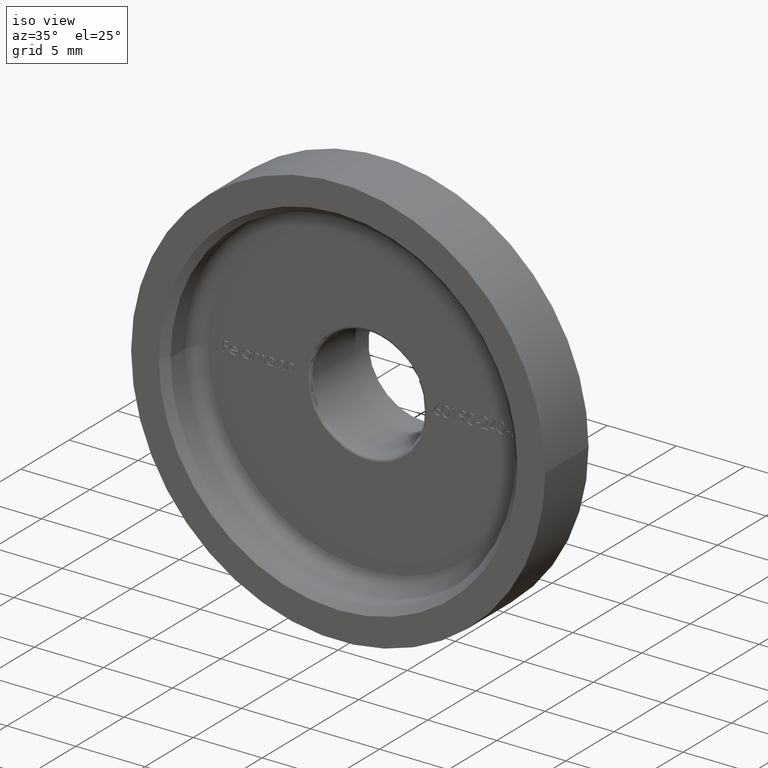
[diagram: clean part render]
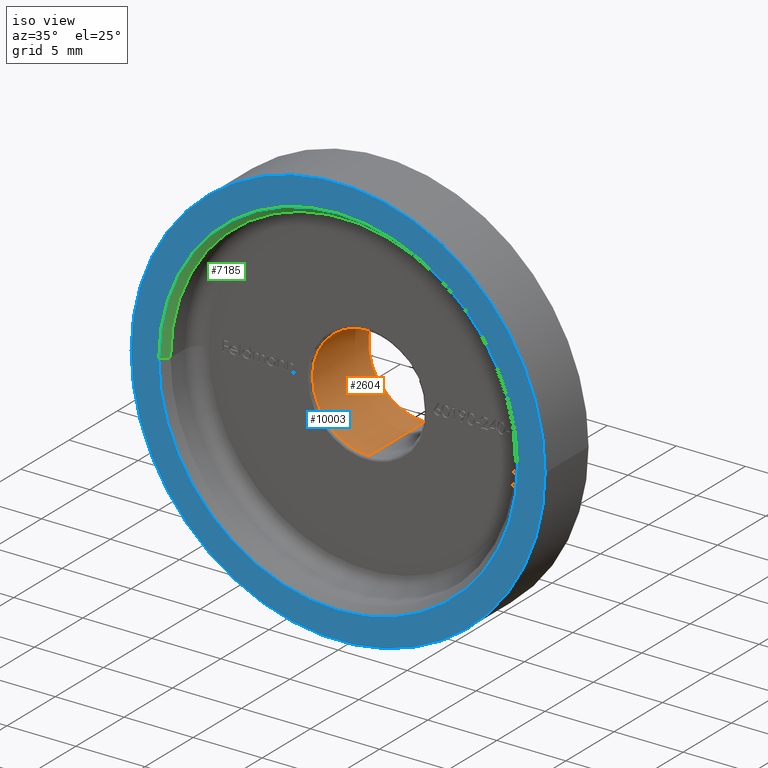
[diagram: same view with three faces highlighted in distinct colors, each labeled with its STEP entity id]
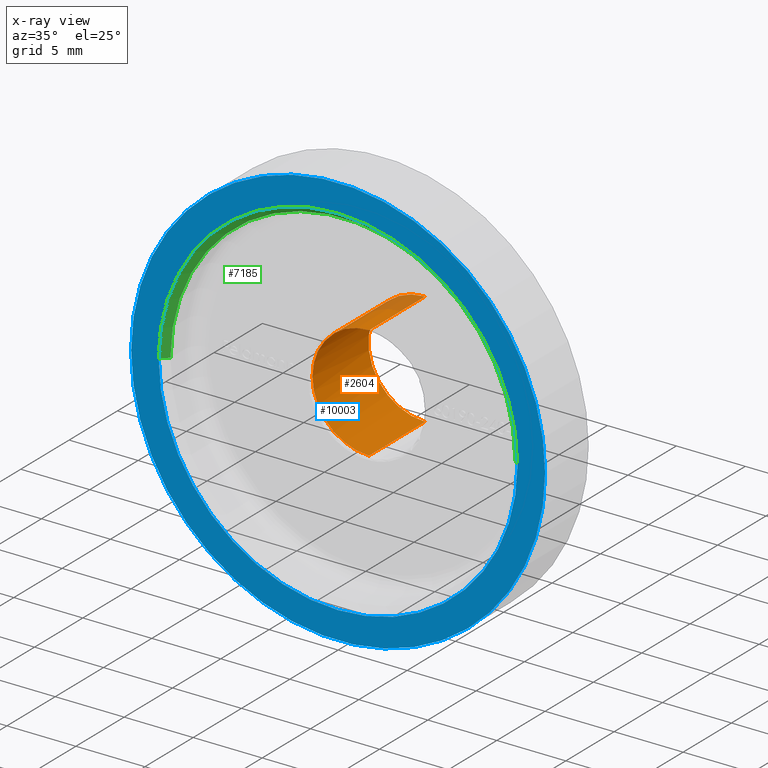
[diagram: x-ray of the same camera — body ghosted, the three highlighted faces saturated]
A machine part, iso view with three faces highlighted in distinct colors.
The next image is the same camera in x-ray (body ghosted, the three faces saturated) — at least one of them is partly hidden behind the body in this view.
Their STEP definitions:

[orange] entity #2604 — the highlighted cylindrical surface (partial cylindrical patch) has radius 4.1 mm, axis along (-0, 1, -0).
#144 = AXIS2_PLACEMENT_3D ( 'NONE', #9505, #13936, #5271 ) ;
#224 = CARTESIAN_POINT ( 'NONE',  ( -1.789868398753823338E-15, 3.199999999999998845, 4.099999999999999645 ) ) ;
#280 = ORIENTED_EDGE ( 'NONE', *, *, #10764, .T. ) ;
#291 = DIRECTION ( 'NONE',  ( 0.000000000000000000, 0.000000000000000000, 1.000000000000000000 ) ) ;
#947 = CARTESIAN_POINT ( 'NONE',  ( -1.287763211103408797E-15, 9.000000000000001776, -4.099999999999999645 ) ) ;
#1347 = DIRECTION ( 'NONE',  ( 0.000000000000000000, 1.000000000000000000, 0.000000000000000000 ) ) ;
#1523 = CYLINDRICAL_SURFACE ( 'NONE', #3236, 4.099999999999999645 ) ;
#1619 = CARTESIAN_POINT ( 'NONE',  ( -1.789868398753823338E-15, 0.000000000000000000, 4.099999999999999645 ) ) ;
#1684 = DIRECTION ( 'NONE',  ( 1.000000000000000000, 2.115516434118057709E-16, 0.000000000000000000 ) ) ;
#2604 = ADVANCED_FACE ( 'NONE', ( #4054 ), #1523, .F. ) ;
#2978 = CARTESIAN_POINT ( 'NONE',  ( -1.287763211103408599E-15, 3.199999999999998845, -4.099999999999999645 ) ) ;
#3164 = DIRECTION ( 'NONE',  ( 0.000000000000000000, 0.000000000000000000, 1.000000000000000000 ) ) ;
#3181 = EDGE_CURVE ( 'NONE', #8200, #13725, #6463, .T. ) ;
#3236 = AXIS2_PLACEMENT_3D ( 'NONE', #7513, #14156, #3164 ) ;
#4054 = FACE_OUTER_BOUND ( 'NONE', #7826, .T. ) ;
#4628 = LINE ( 'NONE', #13463, #7369 ) ;
#4810 = DIRECTION ( 'NONE',  ( 1.884071998688235002E-16, -1.000000000000000000, -0.000000000000000000 ) ) ;
#5214 = VERTEX_POINT ( 'NONE', #2978 ) ;
#5271 = DIRECTION ( 'NONE',  ( 1.000000000000000000, 2.115516434118057709E-16, 0.000000000000000000 ) ) ;
#5680 = CARTESIAN_POINT ( 'NONE',  ( -1.789868398753823338E-15, 9.000000000000001776, 0.000000000000000000 ) ) ;
#6232 = ORIENTED_EDGE ( 'NONE', *, *, #3181, .T. ) ;
#6316 = VERTEX_POINT ( 'NONE', #9429 ) ;
#6463 = CIRCLE ( 'NONE', #8641, 4.099999999999999645 ) ;
#6935 = EDGE_CURVE ( 'NONE', #13478, #6316, #9832, .T. ) ;
#7369 = VECTOR ( 'NONE', #13514, 1000.000000000000000 ) ;
#7513 = CARTESIAN_POINT ( 'NONE',  ( -1.789868398753823338E-15, 0.000000000000000000, 0.000000000000000000 ) ) ;
#7569 = EDGE_CURVE ( 'NONE', #6316, #5214, #9320, .T. ) ;
#7826 = EDGE_LOOP ( 'NONE', ( #10161, #12762, #280, #6232, #9032 ) ) ;
#8066 = CARTESIAN_POINT ( 'NONE',  ( -1.789868398753823338E-15, 3.199999999999998845, 0.000000000000000000 ) ) ;
#8080 = EDGE_CURVE ( 'NONE', #13478, #13725, #12889, .T. ) ;
#8200 = VERTEX_POINT ( 'NONE', #947 ) ;
#8641 = AXIS2_PLACEMENT_3D ( 'NONE', #5680, #1347, #291 ) ;
#8929 = AXIS2_PLACEMENT_3D ( 'NONE', #8066, #4810, #1684 ) ;
#9032 = ORIENTED_EDGE ( 'NONE', *, *, #8080, .F. ) ;
#9320 = CIRCLE ( 'NONE', #8929, 4.099999999999999645 ) ;
#9358 = DIRECTION ( 'NONE',  ( -0.000000000000000000, 1.000000000000000000, -0.000000000000000000 ) ) ;
#9429 = CARTESIAN_POINT ( 'NONE',  ( -4.100000000000001421, 3.199999999999997957, 5.143516556418882928E-16 ) ) ;
#9505 = CARTESIAN_POINT ( 'NONE',  ( -1.789868398753823338E-15, 3.199999999999998845, 0.000000000000000000 ) ) ;
#9832 = CIRCLE ( 'NONE', #144, 4.099999999999999645 ) ;
#10161 = ORIENTED_EDGE ( 'NONE', *, *, #6935, .T. ) ;
#10764 = EDGE_CURVE ( 'NONE', #5214, #8200, #4628, .T. ) ;
#12208 = VECTOR ( 'NONE', #9358, 1000.000000000000000 ) ;
#12632 = CARTESIAN_POINT ( 'NONE',  ( -1.789868398753823338E-15, 9.000000000000001776, 4.099999999999999645 ) ) ;
#12762 = ORIENTED_EDGE ( 'NONE', *, *, #7569, .T. ) ;
#12889 = LINE ( 'NONE', #1619, #12208 ) ;
#13463 = CARTESIAN_POINT ( 'NONE',  ( -1.287763211103408797E-15, 0.000000000000000000, -4.099999999999999645 ) ) ;
#13478 = VERTEX_POINT ( 'NONE', #224 ) ;
#13514 = DIRECTION ( 'NONE',  ( -0.000000000000000000, 1.000000000000000000, -0.000000000000000000 ) ) ;
#13725 = VERTEX_POINT ( 'NONE', #12632 ) ;
#13936 = DIRECTION ( 'NONE',  ( 1.884071998688235002E-16, -1.000000000000000000, -0.000000000000000000 ) ) ;
#14156 = DIRECTION ( 'NONE',  ( -0.000000000000000000, 1.000000000000000000, -0.000000000000000000 ) ) ;

[blue] entity #10003 — the highlighted planar face has unit normal (0, -1, -0).
#138 = CIRCLE ( 'NONE', #14054, 15.00000000000000000 ) ;
#617 = AXIS2_PLACEMENT_3D ( 'NONE', #6286, #14025, #7469 ) ;
#857 = CIRCLE ( 'NONE', #9482, 13.00000000000001243 ) ;
#1127 = VERTEX_POINT ( 'NONE', #7260 ) ;
#1143 = DIRECTION ( 'NONE',  ( -1.884071998688235002E-16, 1.000000000000000000, 0.000000000000000000 ) ) ;
#1420 = EDGE_CURVE ( 'NONE', #10763, #12842, #857, .T. ) ;
#1704 = DIRECTION ( 'NONE',  ( 1.000000000000000000, 1.884071998688235002E-16, 0.000000000000000000 ) ) ;
#2019 = ORIENTED_EDGE ( 'NONE', *, *, #2372, .T. ) ;
#2372 = EDGE_CURVE ( 'NONE', #8104, #1127, #138, .T. ) ;
#2497 = EDGE_CURVE ( 'NONE', #12842, #10763, #12795, .T. ) ;
#2568 = DIRECTION ( 'NONE',  ( 1.884071998688235002E-16, -1.000000000000000000, -0.000000000000000000 ) ) ;
#3272 = FACE_OUTER_BOUND ( 'NONE', #9837, .T. ) ;
#3609 = CARTESIAN_POINT ( 'NONE',  ( -1.695664798819406596E-16, -3.035766082959412415E-15, 0.000000000000000000 ) ) ;
#3689 = EDGE_LOOP ( 'NONE', ( #3719, #7913 ) ) ;
#3719 = ORIENTED_EDGE ( 'NONE', *, *, #1420, .T. ) ;
#3843 = CARTESIAN_POINT ( 'NONE',  ( 15.00000000000000000, -2.096580849270600606E-16, 0.000000000000000000 ) ) ;
#4491 = CIRCLE ( 'NONE', #11219, 15.00000000000000000 ) ;
#5546 = EDGE_CURVE ( 'NONE', #1127, #8104, #4491, .T. ) ;
#6047 = CARTESIAN_POINT ( 'NONE',  ( 15.00000000000000000, 8.242814994261007641E-17, 0.000000000000000000 ) ) ;
#6139 = PLANE ( 'NONE',  #8000 ) ;
#6286 = CARTESIAN_POINT ( 'NONE',  ( -1.695664798819407335E-16, -2.743679848089742229E-15, 0.000000000000000000 ) ) ;
#6614 = CARTESIAN_POINT ( 'NONE',  ( -1.695664798819407335E-16, -2.743679848089742229E-15, 0.000000000000000000 ) ) ;
#7007 = ORIENTED_EDGE ( 'NONE', *, *, #5546, .T. ) ;
#7260 = CARTESIAN_POINT ( 'NONE',  ( -15.00000000000000000, -5.861874080991765386E-15, 1.836970198721029589E-15 ) ) ;
#7469 = DIRECTION ( 'NONE',  ( 1.000000000000000000, 1.884071998688235248E-16, 0.000000000000000000 ) ) ;
#7913 = ORIENTED_EDGE ( 'NONE', *, *, #2497, .T. ) ;
#8000 = AXIS2_PLACEMENT_3D ( 'NONE', #6047, #8235, #1704 ) ;
#8104 = VERTEX_POINT ( 'NONE', #3843 ) ;
#8235 = DIRECTION ( 'NONE',  ( 1.884071998688235002E-16, -1.000000000000000000, -0.000000000000000000 ) ) ;
#8845 = DIRECTION ( 'NONE',  ( 1.000000000000000000, 1.884071998688235248E-16, 0.000000000000000000 ) ) ;
#8999 = DIRECTION ( 'NONE',  ( 1.000000000000000000, 1.884071998688234755E-16, 0.000000000000000000 ) ) ;
#9097 = CARTESIAN_POINT ( 'NONE',  ( -1.695664798819406596E-16, -3.035766082959412415E-15, 0.000000000000000000 ) ) ;
#9452 = FACE_BOUND ( 'NONE', #3689, .T. ) ;
#9482 = AXIS2_PLACEMENT_3D ( 'NONE', #6614, #1143, #8845 ) ;
#9837 = EDGE_LOOP ( 'NONE', ( #2019, #7007 ) ) ;
#10003 = ADVANCED_FACE ( 'NONE', ( #9452, #3272 ), #6139, .T. ) ;
#10763 = VERTEX_POINT ( 'NONE', #12636 ) ;
#11219 = AXIS2_PLACEMENT_3D ( 'NONE', #9097, #12425, #8999 ) ;
#11255 = DIRECTION ( 'NONE',  ( 1.000000000000000000, 1.884071998688234755E-16, 0.000000000000000000 ) ) ;
#12425 = DIRECTION ( 'NONE',  ( 1.884071998688235002E-16, -1.000000000000000000, -0.000000000000000000 ) ) ;
#12500 = CARTESIAN_POINT ( 'NONE',  ( -13.00000000000001243, -5.237344844806402427E-15, 1.592040838891560870E-15 ) ) ;
#12636 = CARTESIAN_POINT ( 'NONE',  ( 13.00000000000001243, -2.500148513730820800E-16, 0.000000000000000000 ) ) ;
#12795 = CIRCLE ( 'NONE', #617, 13.00000000000001243 ) ;
#12842 = VERTEX_POINT ( 'NONE', #12500 ) ;
#14025 = DIRECTION ( 'NONE',  ( -1.884071998688235002E-16, 1.000000000000000000, 0.000000000000000000 ) ) ;
#14054 = AXIS2_PLACEMENT_3D ( 'NONE', #3609, #2568, #11255 ) ;

[green] entity #7185 — the highlighted conical surface has half-angle 45 deg.
#507 = DIRECTION ( 'NONE',  ( 1.000000000000000000, 1.908195823574487804E-16, 0.000000000000000000 ) ) ;
#617 = AXIS2_PLACEMENT_3D ( 'NONE', #6286, #14025, #7469 ) ;
#916 = LINE ( 'NONE', #10212, #8733 ) ;
#2201 = DIRECTION ( 'NONE',  ( 1.000000000000000000, 1.908195823574487804E-16, 0.000000000000000000 ) ) ;
#2497 = EDGE_CURVE ( 'NONE', #12842, #10763, #12795, .T. ) ;
#2819 = CONICAL_SURFACE ( 'NONE', #5742, 12.50000000000000000, 0.7853981633974501664 ) ;
#3193 = VERTEX_POINT ( 'NONE', #9073 ) ;
#3223 = AXIS2_PLACEMENT_3D ( 'NONE', #5394, #8689, #2201 ) ;
#3230 = LINE ( 'NONE', #13891, #14178 ) ;
#3657 = DIRECTION ( 'NONE',  ( -0.7071067811865487940, -0.7071067811865463515, 8.659560562354950115E-17 ) ) ;
#4251 = CIRCLE ( 'NONE', #3223, 12.50000000000000000 ) ;
#5394 = CARTESIAN_POINT ( 'NONE',  ( -2.637700798163544434E-16, 0.5000000000000077716, 0.000000000000000000 ) ) ;
#5742 = AXIS2_PLACEMENT_3D ( 'NONE', #7036, #7080, #507 ) ;
#6000 = EDGE_LOOP ( 'NONE', ( #9151, #13317, #9476, #10737 ) ) ;
#6286 = CARTESIAN_POINT ( 'NONE',  ( -1.695664798819407335E-16, -2.743679848089742229E-15, 0.000000000000000000 ) ) ;
#7036 = CARTESIAN_POINT ( 'NONE',  ( -2.637700798163544434E-16, 0.5000000000000077716, 0.000000000000000000 ) ) ;
#7080 = DIRECTION ( 'NONE',  ( 1.884071998688235248E-16, -1.000000000000000000, 0.000000000000000000 ) ) ;
#7185 = ADVANCED_FACE ( 'NONE', ( #8271 ), #2819, .F. ) ;
#7343 = CARTESIAN_POINT ( 'NONE',  ( 12.50000000000000000, 0.5000000000000102141, 0.000000000000000000 ) ) ;
#7469 = DIRECTION ( 'NONE',  ( 1.000000000000000000, 1.884071998688235248E-16, 0.000000000000000000 ) ) ;
#8271 = FACE_OUTER_BOUND ( 'NONE', #6000, .T. ) ;
#8375 = DIRECTION ( 'NONE',  ( 0.7071067811865489050, -0.7071067811865462405, 0.000000000000000000 ) ) ;
#8685 = VERTEX_POINT ( 'NONE', #7343 ) ;
#8689 = DIRECTION ( 'NONE',  ( 1.884071998688235248E-16, -1.000000000000000000, 0.000000000000000000 ) ) ;
#8733 = VECTOR ( 'NONE', #3657, 999.9999999999998863 ) ;
#9073 = CARTESIAN_POINT ( 'NONE',  ( -12.50000000000000000, 0.5000000000000054401, 1.530808498934191521E-15 ) ) ;
#9151 = ORIENTED_EDGE ( 'NONE', *, *, #9609, .F. ) ;
#9476 = ORIENTED_EDGE ( 'NONE', *, *, #12996, .T. ) ;
#9609 = EDGE_CURVE ( 'NONE', #3193, #12842, #916, .T. ) ;
#10212 = CARTESIAN_POINT ( 'NONE',  ( -12.50000000000000000, 0.5000000000000054401, 1.530808498934191521E-15 ) ) ;
#10737 = ORIENTED_EDGE ( 'NONE', *, *, #2497, .F. ) ;
#10763 = VERTEX_POINT ( 'NONE', #12636 ) ;
#12500 = CARTESIAN_POINT ( 'NONE',  ( -13.00000000000001243, -5.237344844806402427E-15, 1.592040838891560870E-15 ) ) ;
#12606 = EDGE_CURVE ( 'NONE', #8685, #3193, #4251, .T. ) ;
#12636 = CARTESIAN_POINT ( 'NONE',  ( 13.00000000000001243, -2.500148513730820800E-16, 0.000000000000000000 ) ) ;
#12795 = CIRCLE ( 'NONE', #617, 13.00000000000001243 ) ;
#12842 = VERTEX_POINT ( 'NONE', #12500 ) ;
#12996 = EDGE_CURVE ( 'NONE', #8685, #10763, #3230, .T. ) ;
#13317 = ORIENTED_EDGE ( 'NONE', *, *, #12606, .F. ) ;
#13891 = CARTESIAN_POINT ( 'NONE',  ( 12.50000000000000000, 0.5000000000000102141, 0.000000000000000000 ) ) ;
#14025 = DIRECTION ( 'NONE',  ( -1.884071998688235002E-16, 1.000000000000000000, 0.000000000000000000 ) ) ;
#14178 = VECTOR ( 'NONE', #8375, 1000.000000000000000 ) ;